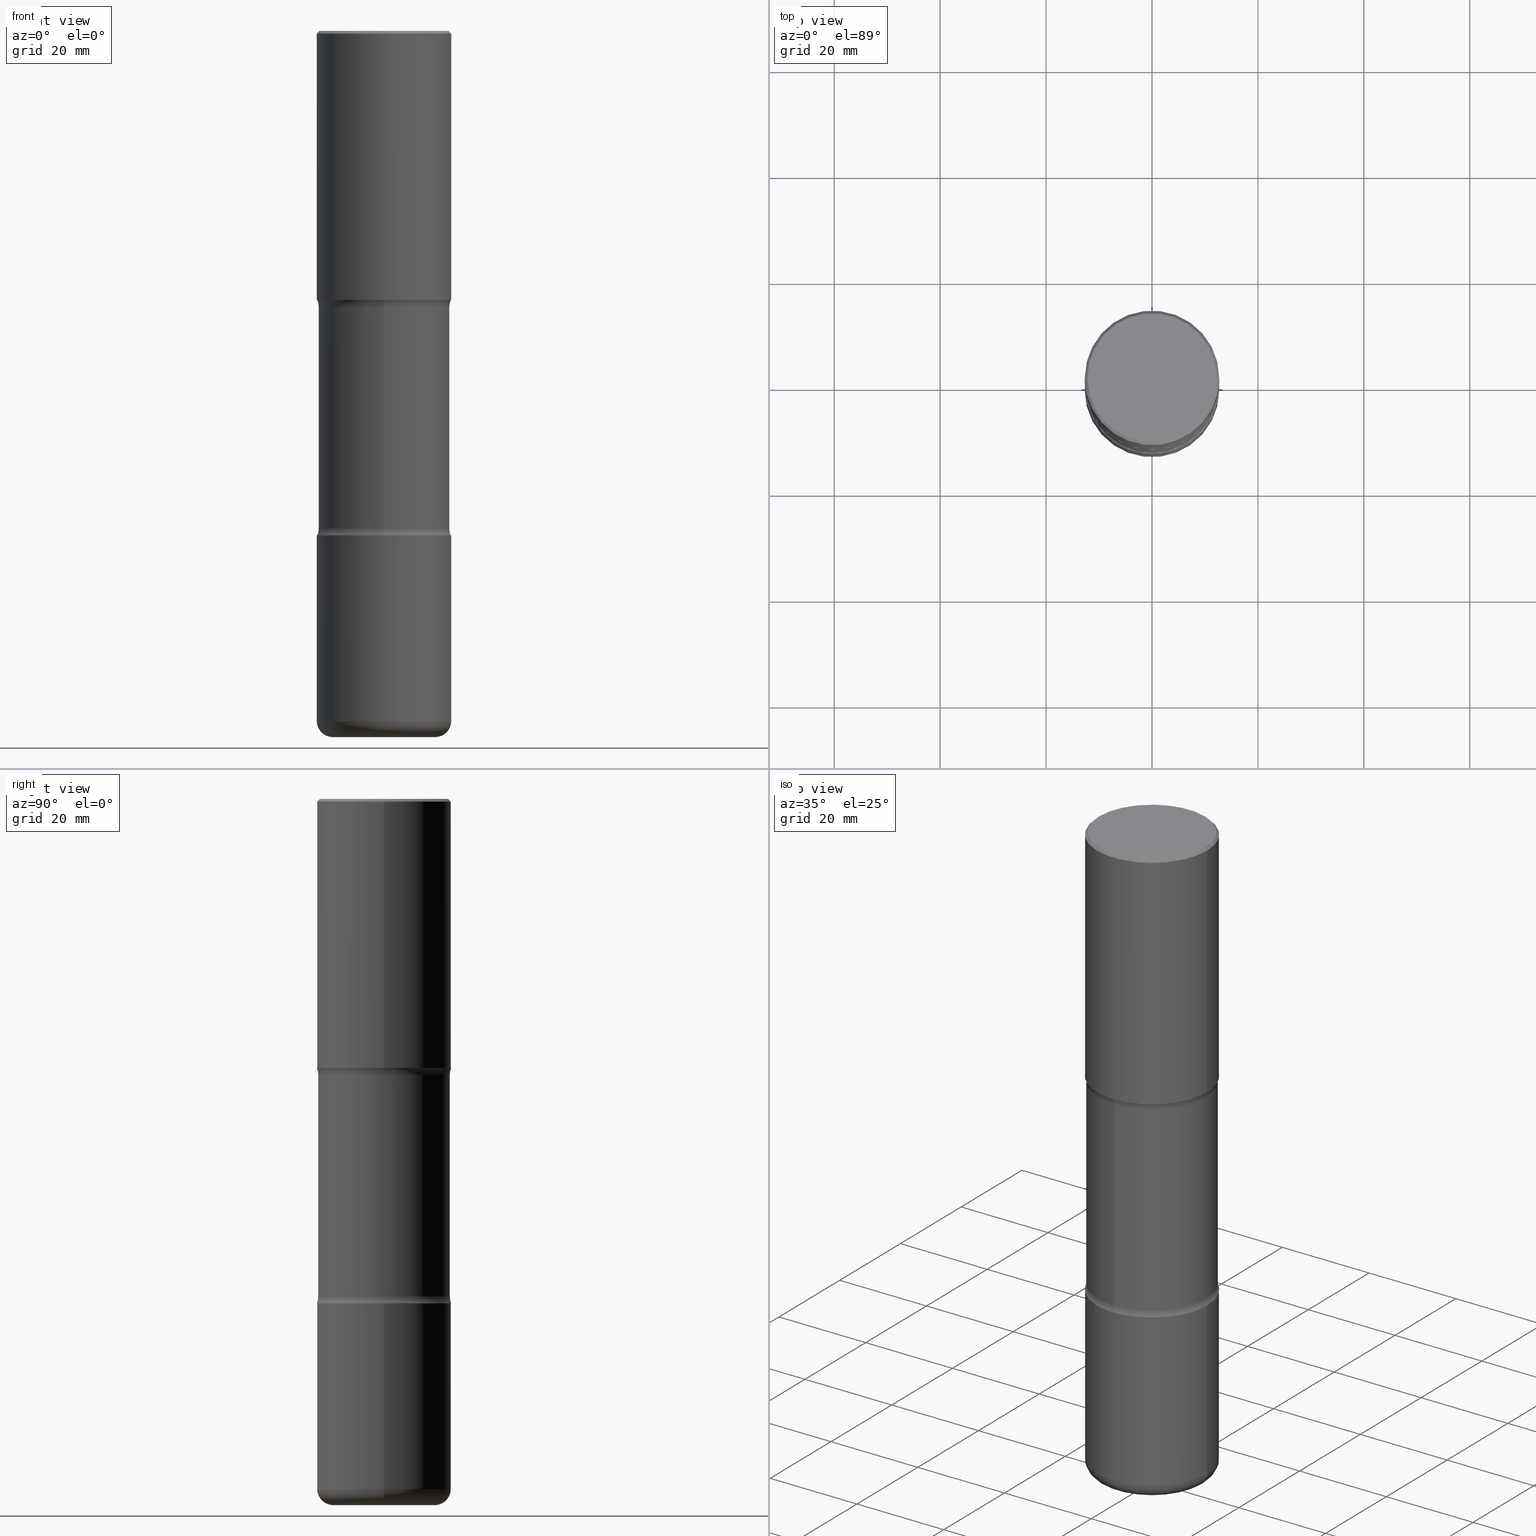
[diagram: canonical four-view strip — front | top / right | iso, engineering-drawing reading convention]
A machine part, canonical four-view strip (front | top / right | iso — engineering-drawing reading convention). The complete STEP part file that produces these views, byte-faithful:
ISO-10303-21;
HEADER;
FILE_DESCRIPTION (( 'STEP AP203' ),
    '1' );
FILE_NAME ('34015.STEP',
    '2024-03-01T22:55:45',
    ( '' ),
    ( '' ),
    'SwSTEP 2.0',
    'SolidWorks 2023',
    '' );
FILE_SCHEMA (( 'CONFIG_CONTROL_DESIGN' ));
ENDSEC;

DATA;
#1 = DIRECTION ( 'NONE',  ( -2.445468806185136597E-29, 3.491481338843145583E-15, 1.000000000000000000 ) ) ;
#2 = VECTOR ( 'NONE', #487, 39.37007874015748143 ) ;
#3 = DIRECTION ( 'NONE',  ( -2.445468806185136597E-29, 3.491481338843145583E-15, 1.000000000000000000 ) ) ;
#4 = DIRECTION ( 'NONE',  ( 2.477262793819919418E-29, -3.445950538948741294E-15, -1.000000000000000000 ) ) ;
#5 = ADVANCED_FACE ( 'NONE', ( #235 ), #245, .T. ) ;
#6 = LINE ( 'NONE', #478, #280 ) ;
#7 = DIRECTION ( 'NONE',  ( 2.477262793819919418E-29, -3.445950538948741294E-15, -1.000000000000000000 ) ) ;
#8 = DIRECTION ( 'NONE',  ( 2.445468806185136597E-29, -3.491481338843145583E-15, -1.000000000000000000 ) ) ;
#9 = CIRCLE ( 'NONE', #236, 0.1249999999999999584 ) ;
#10 = CONICAL_SURFACE ( 'NONE', #22, 0.5000000000000002220, 0.7853981633974485010 ) ;
#11 = ORIENTED_EDGE ( 'NONE', *, *, #416, .T. ) ;
#12 = EDGE_CURVE ( 'NONE', #409, #187, #298, .T. ) ;
#13 = TOROIDAL_SURFACE ( 'NONE', #247, 0.3800000000000005040, 0.1200000000000004258 ) ;
#14 = CYLINDRICAL_SURFACE ( 'NONE', #419, 0.4890000000000000457 ) ;
#15 = EDGE_CURVE ( 'NONE', #548, #131, #267, .T. ) ;
#16 = PLANE ( 'NONE',  #249 ) ;
#17 = PERSON_AND_ORGANIZATION ( #499, #469 ) ;
#18 = LINE ( 'NONE', #63, #503 ) ;
#19 = ORIENTED_EDGE ( 'NONE', *, *, #190, .T. ) ;
#20 = CARTESIAN_POINT ( 'NONE',  ( 0.5000000000000002220, -3.500078625662630657E-15, -0.02000000000000010103 ) ) ;
#21 = ORIENTED_EDGE ( 'NONE', *, *, #436, .F. ) ;
#22 = AXIS2_PLACEMENT_3D ( 'NONE', #92, #8, #481 ) ;
#23 = ORIENTED_EDGE ( 'NONE', *, *, #374, .F. ) ;
#24 = APPLICATION_CONTEXT ( 'configuration controlled 3d designs of mechanical parts and assemblies' ) ;
#25 = ORIENTED_EDGE ( 'NONE', *, *, #12, .T. ) ;
#26 = VERTEX_POINT ( 'NONE', #35 ) ;
#27 = EDGE_CURVE ( 'NONE', #26, #321, #9, .T. ) ;
#28 = EDGE_CURVE ( 'NONE', #457, #323, #118, .T. ) ;
#29 = CIRCLE ( 'NONE', #69, 0.3800000000000005040 ) ;
#30 = AXIS2_PLACEMENT_3D ( 'NONE', #74, #116, #244 ) ;
#31 = LINE ( 'NONE', #335, #282 ) ;
#32 = DIRECTION ( 'NONE',  ( 1.000000000000000000, -6.860497997771530774E-15, 4.841356471107676355E-29 ) ) ;
#33 = COORDINATED_UNIVERSAL_TIME_OFFSET ( 5, 0, .BEHIND. ) ;
#34 = DIRECTION ( 'NONE',  ( 1.000000000000000000, -6.982962677686266711E-15, 4.876176775795935232E-29 ) ) ;
#35 = CARTESIAN_POINT ( 'NONE',  ( -3.430248998885676640E-15, -0.5000000000000134337, -3.749999999999997780 ) ) ;
#36 = FACE_OUTER_BOUND ( 'NONE', #106, .T. ) ;
#37 = CIRCLE ( 'NONE', #108, 0.1249999999999999584 ) ;
#38 = APPROVAL_PERSON_ORGANIZATION ( #65, #324, #274 ) ;
#39 = ORIENTED_EDGE ( 'NONE', *, *, #15, .F. ) ;
#40 = EDGE_CURVE ( 'NONE', #434, #276, #319, .T. ) ;
#41 = EDGE_CURVE ( 'NONE', #187, #313, #367, .T. ) ;
#42 = DIRECTION ( 'NONE',  ( -2.445468806185136597E-29, 3.491481338843145583E-15, 1.000000000000000000 ) ) ;
#43 = CARTESIAN_POINT ( 'NONE',  ( -4.212345770631630550E-15, -0.6140000000000130909, -3.698726225026820025 ) ) ;
#44 = PERSON_AND_ORGANIZATION ( #499, #469 ) ;
#45 = ORIENTED_EDGE ( 'NONE', *, *, #240, .T. ) ;
#46 = CARTESIAN_POINT ( 'NONE',  ( 1.288640221392413968E-28, -1.826198082908490324E-14, -5.249999999999999112 ) ) ;
#47 = APPROVAL ( #382, 'UNSPECIFIED' ) ;
#48 = ADVANCED_FACE ( 'NONE', ( #117 ), #201, .F. ) ;
#49 = AXIS2_PLACEMENT_3D ( 'NONE', #241, #198, #555 ) ;
#50 = CIRCLE ( 'NONE', #171, 0.4890000000000001013 ) ;
#51 = DIRECTION ( 'NONE',  ( 2.477262793819919418E-29, -3.445950538948741294E-15, -1.000000000000000000 ) ) ;
#52 = APPROVAL_ROLE ( '' ) ;
#53 = DIRECTION ( 'NONE',  ( -1.000000000000000000, 6.982962677686265922E-15, -4.876176775795935793E-29 ) ) ;
#54 = ORIENTED_EDGE ( 'NONE', *, *, #345, .F. ) ;
#55 = LINE ( 'NONE', #130, #388 ) ;
#56 = CALENDAR_DATE ( 2024, 1, 3 ) ;
#57 = EDGE_CURVE ( 'NONE', #466, #304, #37, .T. ) ;
#58 = ORIENTED_EDGE ( 'NONE', *, *, #129, .F. ) ;
#59 = CYLINDRICAL_SURFACE ( 'NONE', #492, 0.4890000000000000457 ) ;
#60 = EDGE_LOOP ( 'NONE', ( #539, #331 ) ) ;
#61 = ADVANCED_FACE ( 'NONE', ( #223 ), #484, .T. ) ;
#62 = TOROIDAL_SURFACE ( 'NONE', #404, 0.6140000000000001013, 0.1250000000000000278 ) ;
#63 = CARTESIAN_POINT ( 'NONE',  ( 3.414668749388713416E-15, 0.4889999999999817826, -5.250000000000000888 ) ) ;
#64 = ORIENTED_EDGE ( 'NONE', *, *, #225, .F. ) ;
#65 = PERSON_AND_ORGANIZATION ( #499, #469 ) ;
#66 = EDGE_LOOP ( 'NONE', ( #401, #543, #516, #79 ) ) ;
#67 = EDGE_LOOP ( 'NONE', ( #534, #153 ) ) ;
#68 = PRODUCT_DEFINITION_SHAPE ( 'NONE', 'NONE',  #446 ) ;
#69 = AXIS2_PLACEMENT_3D ( 'NONE', #219, #3, #435 ) ;
#70 = LOCAL_TIME ( 17, 55, 45.00000000000000000, #202 ) ;
#71 = EDGE_CURVE ( 'NONE', #438, #182, #154, .T. ) ;
#72 = EDGE_LOOP ( 'NONE', ( #251, #227, #151, #21 ) ) ;
#73 = EDGE_LOOP ( 'NONE', ( #194, #11, #19, #54 ) ) ;
#74 = CARTESIAN_POINT ( 'NONE',  ( 4.890937612370298557E-31, -6.982962677686327354E-17, -0.02000000000000010103 ) ) ;
#75 = DIRECTION ( 'NONE',  ( -6.982962677686265133E-15, -1.000000000000000000, 0.000000000000000000 ) ) ;
#76 = CALENDAR_DATE ( 2024, 1, 3 ) ;
#77 = DIRECTION ( 'NONE',  ( 6.860497997771532351E-15, 1.000000000000000000, 0.000000000000000000 ) ) ;
#78 = TOROIDAL_SURFACE ( 'NONE', #394, 0.6140000000000001013, 0.1249999999999999584 ) ;
#79 = ORIENTED_EDGE ( 'NONE', *, *, #396, .F. ) ;
#80 = SECURITY_CLASSIFICATION_LEVEL ( 'unclassified' ) ;
#81 = DIRECTION ( 'NONE',  ( 2.477262793819919418E-29, -3.445950538948741294E-15, -1.000000000000000000 ) ) ;
#82 = LINE ( 'NONE', #243, #414 ) ;
#83 = EDGE_CURVE ( 'NONE', #304, #321, #378, .T. ) ;
#84 = PERSON_AND_ORGANIZATION_ROLE ( 'classification_officer' ) ;
#85 = CIRCLE ( 'NONE', #290, 0.5000000000000004441 ) ;
#86 = AXIS2_PLACEMENT_3D ( 'NONE', #143, #488, #377 ) ;
#87 = AXIS2_PLACEMENT_3D ( 'NONE', #412, #495, #366 ) ;
#88 = LINE ( 'NONE', #253, #420 ) ;
#89 = EDGE_LOOP ( 'NONE', ( #144, #94, #391, #64 ) ) ;
#90 = DIRECTION ( 'NONE',  ( 2.477262793819919418E-29, -3.445950538948741294E-15, -1.000000000000000000 ) ) ;
#91 = DIRECTION ( 'NONE',  ( 1.000000000000000000, 0.000000000000000000, 0.000000000000000000 ) ) ;
#92 = CARTESIAN_POINT ( 'NONE',  ( 4.890937612370298557E-31, -6.982962677686327354E-17, -0.02000000000000010103 ) ) ;
#93 = AXIS2_PLACEMENT_3D ( 'NONE', #477, #266, #271 ) ;
#94 = ORIENTED_EDGE ( 'NONE', *, *, #129, .T. ) ;
#95 = CARTESIAN_POINT ( 'NONE',  ( 3.414668749388633741E-15, 0.4889999999999927738, -2.051273774973179975 ) ) ;
#96 = PERSON_AND_ORGANIZATION_ROLE ( 'creator' ) ;
#97 = DIRECTION ( 'NONE',  ( 2.477262793819919418E-29, -3.445950538948741294E-15, -1.000000000000000000 ) ) ;
#98 = DIRECTION ( 'NONE',  ( 6.982962677686265133E-15, 1.000000000000000000, -3.351960728422408359E-15 ) ) ;
#99 = AXIS2_PLACEMENT_3D ( 'NONE', #350, #51, #98 ) ;
#100 = LOCAL_TIME ( 17, 55, 45.00000000000000000, #444 ) ;
#101 = MANIFOLD_SOLID_BREP ( 'Body-Move/Copy2[1]', #512 ) ;
#102 = DIRECTION ( 'NONE',  ( 2.477262793819919418E-29, -3.445950538948741294E-15, -1.000000000000000000 ) ) ;
#103 = ORIENTED_EDGE ( 'NONE', *, *, #353, .T. ) ;
#104 = VERTEX_POINT ( 'NONE', #176 ) ;
#105 = DIRECTION ( 'NONE',  ( -6.982962677686265133E-15, -1.000000000000000000, 0.000000000000000000 ) ) ;
#106 = EDGE_LOOP ( 'NONE', ( #368, #415, #289, #417 ) ) ;
#107 = CARTESIAN_POINT ( 'NONE',  ( 3.491481338843227230E-15, 0.4999999999999872879, -3.750000000000001332 ) ) ;
#108 = AXIS2_PLACEMENT_3D ( 'NONE', #273, #541, #105 ) ;
#109 = AXIS2_PLACEMENT_3D ( 'NONE', #558, #161, #465 ) ;
#110 = ADVANCED_FACE ( 'NONE', ( #181 ), #10, .T. ) ;
#111 = ORIENTED_EDGE ( 'NONE', *, *, #139, .F. ) ;
#112 = ORIENTED_EDGE ( 'NONE', *, *, #556, .F. ) ;
#113 = FACE_OUTER_BOUND ( 'NONE', #60, .T. ) ;
#114 =( LENGTH_UNIT ( ) NAMED_UNIT ( * ) SI_UNIT ( $, .METRE. ) );
#115 = MANIFOLD_SOLID_BREP ( 'Body-Move/Copy2[4]', #518 ) ;
#116 = DIRECTION ( 'NONE',  ( -2.445468806185136597E-29, 3.491481338843145583E-15, 1.000000000000000000 ) ) ;
#117 = FACE_OUTER_BOUND ( 'NONE', #258, .T. ) ;
#118 = CIRCLE ( 'NONE', #437, 0.4800000000000001488 ) ;
#119 = FACE_OUTER_BOUND ( 'NONE', #365, .T. ) ;
#120 = CIRCLE ( 'NONE', #186, 0.1250000000000000278 ) ;
#121 = CIRCLE ( 'NONE', #30, 0.5000000000000002220 ) ;
#122 = CARTESIAN_POINT ( 'NONE',  ( 9.045119605921999164E-29, -1.291403359217090407E-14, -3.698726225026822245 ) ) ;
#123 = ADVANCED_FACE ( 'NONE', ( #408 ), #16, .F. ) ;
#124 = DIRECTION ( 'NONE',  ( 1.000000000000000000, -6.982962677686266711E-15, 4.876036955247127722E-29 ) ) ;
#125 = CARTESIAN_POINT ( 'NONE',  ( -4.212345770631670782E-15, -0.6140000000000073177, -2.051273774973176423 ) ) ;
#126 = TOROIDAL_SURFACE ( 'NONE', #178, 0.6140000000000001013, 0.1249999999999999584 ) ;
#127 = ADVANCED_FACE ( 'NONE', ( #264 ), #359, .T. ) ;
#128 = CC_DESIGN_APPROVAL ( #324, ( #527 ) ) ;
#129 = EDGE_CURVE ( 'NONE', #104, #276, #142, .T. ) ;
#130 = CARTESIAN_POINT ( 'NONE',  ( 0.5000000000000003331, -3.491481338843135722E-15, 2.438088387897969578E-29 ) ) ;
#131 = VERTEX_POINT ( 'NONE', #451 ) ;
#132 = CARTESIAN_POINT ( 'NONE',  ( -0.4800000000000001488, 3.386736898677840380E-15, 1.280553747027767124E-17 ) ) ;
#133 =( CONVERSION_BASED_UNIT ( 'INCH', #486 ) LENGTH_UNIT ( ) NAMED_UNIT ( #433 ) );
#134 = CARTESIAN_POINT ( 'NONE',  ( -3.392516259897932872E-15, -0.4890000000000129798, -3.698726225026820469 ) ) ;
#135 =( NAMED_UNIT ( * ) PLANE_ANGLE_UNIT ( ) SI_UNIT ( $, .RADIAN. ) );
#136 = DIRECTION ( 'NONE',  ( 2.438088387897960049E-29, -3.491481338843145188E-15, -1.000000000000000000 ) ) ;
#137 = AXIS2_PLACEMENT_3D ( 'NONE', #384, #346, #553 ) ;
#138 = CARTESIAN_POINT ( 'NONE',  ( 9.043489408154512884E-29, -1.291636812815903928E-14, -3.698726225026822245 ) ) ;
#139 = EDGE_CURVE ( 'NONE', #409, #304, #18, .T. ) ;
#140 = FACE_OUTER_BOUND ( 'NONE', #89, .T. ) ;
#141 = APPLICATION_PROTOCOL_DEFINITION ( 'international standard', 'config_control_design', 1994, #293 ) ;
#142 = LINE ( 'NONE', #317, #2 ) ;
#143 = CARTESIAN_POINT ( 'NONE',  ( 9.170508023194261117E-29, -1.309305502066179584E-14, -3.749999999999999556 ) ) ;
#144 = ORIENTED_EDGE ( 'NONE', *, *, #209, .T. ) ;
#145 = DIRECTION ( 'NONE',  ( -1.000000000000000000, 6.982962677686267499E-15, 0.000000000000000000 ) ) ;
#146 = APPROVAL ( #255, 'UNSPECIFIED' ) ;
#147 = VERTEX_POINT ( 'NONE', #480 ) ;
#148 = AXIS2_PLACEMENT_3D ( 'NONE', #407, #523, #91 ) ;
#149 = EDGE_LOOP ( 'NONE', ( #514, #405, #462, #379 ) ) ;
#150 = PRODUCT ( '34015', '34015', '', ( #262 ) ) ;
#151 = ORIENTED_EDGE ( 'NONE', *, *, #71, .T. ) ;
#152 = FACE_OUTER_BOUND ( 'NONE', #380, .T. ) ;
#153 = ORIENTED_EDGE ( 'NONE', *, *, #482, .T. ) ;
#154 = CIRCLE ( 'NONE', #93, 0.5000000000000002220 ) ;
#155 = ORIENTED_EDGE ( 'NONE', *, *, #305, .F. ) ;
#156 = PERSON_AND_ORGANIZATION_ROLE ( 'creator' ) ;
#157 = AXIS2_PLACEMENT_3D ( 'NONE', #226, #406, #188 ) ;
#158 = ORIENTED_EDGE ( 'NONE', *, *, #345, .T. ) ;
#159 = DIRECTION ( 'NONE',  ( -6.982962677686266711E-15, -1.000000000000000000, 3.491481338843145583E-15 ) ) ;
#160 = DIRECTION ( 'NONE',  ( 6.982962677686266711E-15, 1.000000000000000000, -3.278217592397113101E-15 ) ) ;
#161 = DIRECTION ( 'NONE',  ( -2.445468806185136597E-29, 3.491481338843145583E-15, 1.000000000000000000 ) ) ;
#162 = CARTESIAN_POINT ( 'NONE',  ( -3.131554243005659264E-46, 4.471029511141341874E-32, 1.280553747030123384E-17 ) ) ;
#163 = CIRCLE ( 'NONE', #215, 0.4800000000000001488 ) ;
#164 = APPROVAL_PERSON_ORGANIZATION ( #238, #47, #340 ) ;
#165 = DIRECTION ( 'NONE',  ( 2.477262793819919418E-29, -3.445950538948741294E-15, -1.000000000000000000 ) ) ;
#166 = CC_DESIGN_PERSON_AND_ORGANIZATION_ASSIGNMENT ( #191, #156, ( #527 ) ) ;
#167 = CARTESIAN_POINT ( 'NONE',  ( 0.000000000000000000, 0.000000000000000000, 0.000000000000000000 ) ) ;
#168 = DESIGN_CONTEXT ( 'detailed design', #293, 'design' ) ;
#169 = CARTESIAN_POINT ( 'NONE',  ( 3.414668749388675156E-15, 0.4889999999999871672, -3.698726225026823577 ) ) ;
#170 = CLOSED_SHELL ( 'NONE', ( #5, #110, #510, #123, #296, #200 ) ) ;
#171 = AXIS2_PLACEMENT_3D ( 'NONE', #138, #483, #440 ) ;
#172 = LOCAL_TIME ( 17, 55, 45.00000000000000000, #544 ) ;
#173 = DIRECTION ( 'NONE',  ( 1.000000000000000000, -6.982962677686265133E-15, 4.883557194083112340E-29 ) ) ;
#174 = DIRECTION ( 'NONE',  ( -2.445468806185136877E-29, 3.491481338843145188E-15, 1.000000000000000000 ) ) ;
#175 = CARTESIAN_POINT ( 'NONE',  ( 1.288640221392413968E-28, -1.826198082908490324E-14, -5.249999999999999112 ) ) ;
#176 = CARTESIAN_POINT ( 'NONE',  ( -0.5000000000000006661, -1.435858558946483566E-14, -5.130000000000001670 ) ) ;
#177 = AXIS2_PLACEMENT_3D ( 'NONE', #470, #339, #431 ) ;
#178 = AXIS2_PLACEMENT_3D ( 'NONE', #122, #511, #287 ) ;
#179 = DIRECTION ( 'NONE',  ( 6.982962677686265133E-15, 1.000000000000000000, -3.278217592397113101E-15 ) ) ;
#180 = PERSON_AND_ORGANIZATION_ROLE ( 'design_owner' ) ;
#181 = FACE_OUTER_BOUND ( 'NONE', #72, .T. ) ;
#182 = VERTEX_POINT ( 'NONE', #463 ) ;
#183 = PERSON_AND_ORGANIZATION ( #499, #469 ) ;
#184 = ADVANCED_FACE ( 'NONE', ( #36 ), #78, .F. ) ;
#185 = EDGE_LOOP ( 'NONE', ( #155, #192 ) ) ;
#186 = AXIS2_PLACEMENT_3D ( 'NONE', #125, #467, #77 ) ;
#187 = VERTEX_POINT ( 'NONE', #203 ) ;
#188 = DIRECTION ( 'NONE',  ( 1.000000000000000000, -6.982962677686268288E-15, 0.000000000000000000 ) ) ;
#189 = EDGE_LOOP ( 'NONE', ( #228, #370 ) ) ;
#190 = EDGE_CURVE ( 'NONE', #560, #537, #256, .T. ) ;
#191 = PERSON_AND_ORGANIZATION ( #499, #469 ) ;
#192 = ORIENTED_EDGE ( 'NONE', *, *, #416, .F. ) ;
#193 = CC_DESIGN_PERSON_AND_ORGANIZATION_ASSIGNMENT ( #476, #180, ( #150 ) ) ;
#194 = ORIENTED_EDGE ( 'NONE', *, *, #454, .F. ) ;
#195 = AXIS2_PLACEMENT_3D ( 'NONE', #208, #165, #160 ) ;
#196 = CALENDAR_DATE ( 2024, 1, 3 ) ;
#197 = AXIS2_PLACEMENT_3D ( 'NONE', #259, #528, #315 ) ;
#198 = DIRECTION ( 'NONE',  ( -2.445468806185136597E-29, 3.491481338843145583E-15, 1.000000000000000000 ) ) ;
#199 = DIRECTION ( 'NONE',  ( -2.445468806185136877E-29, 3.491481338843145188E-15, 1.000000000000000000 ) ) ;
#200 = ADVANCED_FACE ( 'NONE', ( #557 ), #291, .T. ) ;
#201 = PLANE ( 'NONE',  #137 ) ;
#202 = COORDINATED_UNIVERSAL_TIME_OFFSET ( 5, 0, .BEHIND. ) ;
#203 = CARTESIAN_POINT ( 'NONE',  ( 3.491481338843185026E-15, 0.4999999999999934497, -2.000000000000002220 ) ) ;
#204 = DIRECTION ( 'NONE',  ( -2.445468806185136597E-29, 3.491481338843145583E-15, 1.000000000000000000 ) ) ;
#205 = ORIENTED_EDGE ( 'NONE', *, *, #240, .F. ) ;
#206 = AXIS2_PLACEMENT_3D ( 'NONE', #517, #386, #337 ) ;
#207 = LOCAL_TIME ( 17, 55, 45.00000000000000000, #362 ) ;
#208 = CARTESIAN_POINT ( 'NONE',  ( 4.835298134009405219E-29, -7.062641577501501234E-15, -2.000000000000000444 ) ) ;
#209 = EDGE_CURVE ( 'NONE', #537, #104, #429, .T. ) ;
#210 = ADVANCED_FACE ( 'NONE', ( #344 ), #126, .F. ) ;
#211 = LINE ( 'NONE', #515, #545 ) ;
#212 = DIRECTION ( 'NONE',  ( -2.445468806185136877E-29, 3.491481338843145188E-15, 1.000000000000000000 ) ) ;
#213 = ADVANCED_FACE ( 'NONE', ( #119 ), #535, .F. ) ;
#214 = DIRECTION ( 'NONE',  ( 6.982962677686265133E-15, 1.000000000000000000, -3.278217592397113101E-15 ) ) ;
#215 = AXIS2_PLACEMENT_3D ( 'NONE', #162, #297, #248 ) ;
#216 = CARTESIAN_POINT ( 'NONE',  ( 1.254525497572975307E-28, -1.791129926826534290E-14, -5.130000000000001670 ) ) ;
#217 = CC_DESIGN_PERSON_AND_ORGANIZATION_ASSIGNMENT ( #422, #242, ( #527 ) ) ;
#218 = EDGE_CURVE ( 'NONE', #147, #313, #120, .T. ) ;
#219 = CARTESIAN_POINT ( 'NONE',  ( 1.283871123247197162E-28, -1.833027702892652269E-14, -5.250000000000001776 ) ) ;
#220 = DATE_AND_TIME ( #56, #100 ) ;
#221 = ORIENTED_EDGE ( 'NONE', *, *, #139, .T. ) ;
#222 = DIRECTION ( 'NONE',  ( -2.445468806185136597E-29, 3.491481338843145583E-15, 1.000000000000000000 ) ) ;
#223 = FACE_OUTER_BOUND ( 'NONE', #185, .T. ) ;
#224 = CIRCLE ( 'NONE', #109, 0.5000000000000004441 ) ;
#225 = EDGE_CURVE ( 'NONE', #537, #434, #82, .T. ) ;
#226 = CARTESIAN_POINT ( 'NONE',  ( 9.170508023194261117E-29, -1.309305502066179584E-14, -3.749999999999999556 ) ) ;
#227 = ORIENTED_EDGE ( 'NONE', *, *, #498, .T. ) ;
#228 = ORIENTED_EDGE ( 'NONE', *, *, #232, .T. ) ;
#229 = CARTESIAN_POINT ( 'NONE',  ( 4.890937612370298557E-31, -6.982962677686327354E-17, -0.02000000000000010103 ) ) ;
#230 = CIRCLE ( 'NONE', #554, 0.5000000000000004441 ) ;
#231 = ORIENTED_EDGE ( 'NONE', *, *, #352, .F. ) ;
#232 = EDGE_CURVE ( 'NONE', #323, #457, #163, .T. ) ;
#233 = ORIENTED_EDGE ( 'NONE', *, *, #550, .T. ) ;
#234 = ORIENTED_EDGE ( 'NONE', *, *, #232, .F. ) ;
#235 = FACE_OUTER_BOUND ( 'NONE', #66, .T. ) ;
#236 = AXIS2_PLACEMENT_3D ( 'NONE', #43, #32, #421 ) ;
#237 = CIRCLE ( 'NONE', #320, 0.5000000000000004441 ) ;
#238 = PERSON_AND_ORGANIZATION ( #499, #469 ) ;
#239 = ADVANCED_FACE ( 'NONE', ( #343 ), #383, .T. ) ;
#240 = EDGE_CURVE ( 'NONE', #147, #321, #211, .T. ) ;
#241 = CARTESIAN_POINT ( 'NONE',  ( 9.170508023194261117E-29, -1.309305502066179584E-14, -3.749999999999999556 ) ) ;
#242 = PERSON_AND_ORGANIZATION_ROLE ( 'design_supplier' ) ;
#243 = CARTESIAN_POINT ( 'NONE',  ( 0.5000000000000004441, -3.491481338843136511E-15, 2.438088387897969858E-29 ) ) ;
#244 = DIRECTION ( 'NONE',  ( 1.000000000000000000, -6.982962677686267499E-15, 0.000000000000000000 ) ) ;
#245 = CYLINDRICAL_SURFACE ( 'NONE', #491, 0.5000000000000003331 ) ;
#246 = DIRECTION ( 'NONE',  ( 2.477262793819919418E-29, -3.445950538948741294E-15, -1.000000000000000000 ) ) ;
#247 = AXIS2_PLACEMENT_3D ( 'NONE', #216, #306, #173 ) ;
#248 = DIRECTION ( 'NONE',  ( 1.000000000000000000, -6.982962677686266711E-15, 4.876036955247127722E-29 ) ) ;
#249 = AXIS2_PLACEMENT_3D ( 'NONE', #442, #136, #310 ) ;
#250 = CC_DESIGN_APPROVAL ( #47, ( #301 ) ) ;
#251 = ORIENTED_EDGE ( 'NONE', *, *, #28, .F. ) ;
#252 = DIRECTION ( 'NONE',  ( 2.477262793819919418E-29, -3.445950538948741294E-15, -1.000000000000000000 ) ) ;
#253 = CARTESIAN_POINT ( 'NONE',  ( -0.5000000000000002220, 3.421651712066272029E-15, -0.02000000000000010103 ) ) ;
#254 = FACE_OUTER_BOUND ( 'NONE', #559, .T. ) ;
#255 = APPROVAL_STATUS ( 'not_yet_approved' ) ;
#256 = CIRCLE ( 'NONE', #468, 0.1200000000000004258 ) ;
#257 = AXIS2_PLACEMENT_3D ( 'NONE', #229, #302, #145 ) ;
#258 = EDGE_LOOP ( 'NONE', ( #411, #231 ) ) ;
#259 = CARTESIAN_POINT ( 'NONE',  ( 0.000000000000000000, 0.000000000000000000, 0.000000000000000000 ) ) ;
#260 = ORIENTED_EDGE ( 'NONE', *, *, #426, .F. ) ;
#261 = FACE_OUTER_BOUND ( 'NONE', #73, .T. ) ;
#262 = MECHANICAL_CONTEXT ( 'NONE', #24, 'mechanical' ) ;
#263 = ADVANCED_BREP_SHAPE_REPRESENTATION ( '34015', ( #101, #285, #115, #148 ), #330 ) ;
#264 = FACE_OUTER_BOUND ( 'NONE', #149, .T. ) ;
#265 = DIRECTION ( 'NONE',  ( 1.000000000000000000, -6.982962677686264344E-15, 0.000000000000000000 ) ) ;
#266 = DIRECTION ( 'NONE',  ( -2.445468806185136597E-29, 3.491481338843145583E-15, 1.000000000000000000 ) ) ;
#267 = CIRCLE ( 'NONE', #177, 0.5000000000000004441 ) ;
#268 = AXIS2_PLACEMENT_3D ( 'NONE', #395, #354, #521 ) ;
#269 = CIRCLE ( 'NONE', #157, 0.5000000000000004441 ) ;
#270 = ORIENTED_EDGE ( 'NONE', *, *, #490, .T. ) ;
#271 = DIRECTION ( 'NONE',  ( 1.000000000000000000, -6.982962677686267499E-15, 0.000000000000000000 ) ) ;
#272 = ORIENTED_EDGE ( 'NONE', *, *, #225, .T. ) ;
#273 = CARTESIAN_POINT ( 'NONE',  ( 4.287539084099458101E-15, 0.6139999999999872227, -3.698726225026824466 ) ) ;
#274 = APPROVAL_ROLE ( '' ) ;
#275 = DIRECTION ( 'NONE',  ( -6.982962677686265922E-15, -1.000000000000000000, 3.445950538948741294E-15 ) ) ;
#276 = VERTEX_POINT ( 'NONE', #428 ) ;
#277 = CC_DESIGN_DATE_AND_TIME_ASSIGNMENT ( #294, #472, ( #301 ) ) ;
#278 = DIRECTION ( 'NONE',  ( 6.982962677686265922E-15, 1.000000000000000000, -3.445950538948741294E-15 ) ) ;
#279 = FACE_OUTER_BOUND ( 'NONE', #67, .T. ) ;
#280 = VECTOR ( 'NONE', #212, 39.37007874015748143 ) ;
#281 = ORIENTED_EDGE ( 'NONE', *, *, #57, .F. ) ;
#282 = VECTOR ( 'NONE', #505, 39.37007874015748143 ) ;
#283 = DIRECTION ( 'NONE',  ( 6.982962677686265133E-15, 1.000000000000000000, -3.351960728422408359E-15 ) ) ;
#284 = EDGE_LOOP ( 'NONE', ( #496, #348, #549, #397 ) ) ;
#285 = MANIFOLD_SOLID_BREP ( 'Body-Move/Copy2[2]', #170 ) ;
#286 = CARTESIAN_POINT ( 'NONE',  ( 4.287539084099417080E-15, 0.6139999999999927738, -2.051273774973180863 ) ) ;
#287 = DIRECTION ( 'NONE',  ( 6.982962677686265922E-15, 1.000000000000000000, -3.445950538948741294E-15 ) ) ;
#288 = CARTESIAN_POINT ( 'NONE',  ( 0.5000000000000006661, -2.140278060710847941E-14, -5.130000000000001670 ) ) ;
#289 = ORIENTED_EDGE ( 'NONE', *, *, #57, .T. ) ;
#290 = AXIS2_PLACEMENT_3D ( 'NONE', #308, #1, #265 ) ;
#291 = CYLINDRICAL_SURFACE ( 'NONE', #299, 0.5000000000000003331 ) ;
#292 = VERTEX_POINT ( 'NONE', #443 ) ;
#293 = APPLICATION_CONTEXT ( 'configuration controlled 3d designs of mechanical parts and assemblies' ) ;
#294 = DATE_AND_TIME ( #76, #360 ) ;
#295 = DIRECTION ( 'NONE',  ( 6.982962677686265922E-15, 1.000000000000000000, -3.445950538948741294E-15 ) ) ;
#296 = ADVANCED_FACE ( 'NONE', ( #522 ), #399, .F. ) ;
#297 = DIRECTION ( 'NONE',  ( -2.445468806185136597E-29, 3.491481338843145583E-15, 1.000000000000000000 ) ) ;
#298 = CIRCLE ( 'NONE', #525, 0.1250000000000000278 ) ;
#299 = AXIS2_PLACEMENT_3D ( 'NONE', #430, #347, #423 ) ;
#300 = CARTESIAN_POINT ( 'NONE',  ( 9.045119605921999164E-29, -1.291403359217090407E-14, -3.698726225026822245 ) ) ;
#301 = SECURITY_CLASSIFICATION ( '', '', #80 ) ;
#302 = DIRECTION ( 'NONE',  ( 2.445468806185136597E-29, -3.491481338843145583E-15, -1.000000000000000000 ) ) ;
#303 = DIRECTION ( 'NONE',  ( 2.477262793819919418E-29, -3.445950538948741294E-15, -1.000000000000000000 ) ) ;
#304 = VERTEX_POINT ( 'NONE', #169 ) ;
#305 = EDGE_CURVE ( 'NONE', #560, #292, #29, .T. ) ;
#306 = DIRECTION ( 'NONE',  ( -2.445468806185136597E-29, 3.491481338843145583E-15, 1.000000000000000000 ) ) ;
#307 = APPLICATION_PROTOCOL_DEFINITION ( 'international standard', 'config_control_design', 1994, #24 ) ;
#308 = CARTESIAN_POINT ( 'NONE',  ( 1.254525497572975307E-28, -1.791129926826534290E-14, -5.130000000000001670 ) ) ;
#309 =( NAMED_UNIT ( * ) SI_UNIT ( $, .STERADIAN. ) SOLID_ANGLE_UNIT ( ) );
#310 = DIRECTION ( 'NONE',  ( -1.000000000000000000, 6.982962677686265922E-15, -4.876176775795935793E-29 ) ) ;
#311 = AXIS2_PLACEMENT_3D ( 'NONE', #449, #90, #214 ) ;
#312 = CC_DESIGN_APPROVAL ( #146, ( #446 ) ) ;
#313 = VERTEX_POINT ( 'NONE', #392 ) ;
#314 = FACE_OUTER_BOUND ( 'NONE', #453, .T. ) ;
#315 = DIRECTION ( 'NONE',  ( 1.000000000000000000, -6.982962677686266711E-15, 4.876176775795935232E-29 ) ) ;
#316 = DATE_AND_TIME ( #398, #207 ) ;
#317 = CARTESIAN_POINT ( 'NONE',  ( -0.5000000000000004441, 3.552713678800504085E-15, -2.459467545127455133E-29 ) ) ;
#318 = ORIENTED_EDGE ( 'NONE', *, *, #393, .T. ) ;
#319 = CIRCLE ( 'NONE', #49, 0.5000000000000004441 ) ;
#320 = AXIS2_PLACEMENT_3D ( 'NONE', #402, #303, #179 ) ;
#321 = VERTEX_POINT ( 'NONE', #134 ) ;
#322 = APPROVAL_STATUS ( 'not_yet_approved' ) ;
#323 = VERTEX_POINT ( 'NONE', #132 ) ;
#324 = APPROVAL ( #322, 'UNSPECIFIED' ) ;
#325 = ADVANCED_FACE ( 'NONE', ( #261 ), #13, .T. ) ;
#326 = APPROVAL_DATE_TIME ( #413, #324 ) ;
#327 = ORIENTED_EDGE ( 'NONE', *, *, #436, .T. ) ;
#328 = SHAPE_DEFINITION_REPRESENTATION ( #68, #263 ) ;
#329 = AXIS2_PLACEMENT_3D ( 'NONE', #363, #403, #529 ) ;
#330 =( GEOMETRIC_REPRESENTATION_CONTEXT ( 3 ) GLOBAL_UNCERTAINTY_ASSIGNED_CONTEXT ( ( #497 ) ) GLOBAL_UNIT_ASSIGNED_CONTEXT ( ( #133, #135, #309 ) ) REPRESENTATION_CONTEXT ( 'NONE', 'WORKASPACE' ) );
#331 = ORIENTED_EDGE ( 'NONE', *, *, #426, .T. ) ;
#332 = DATE_AND_TIME ( #385, #70 ) ;
#333 = CIRCLE ( 'NONE', #87, 0.1200000000000004258 ) ;
#334 = EDGE_LOOP ( 'NONE', ( #260, #493, #318, #281 ) ) ;
#335 = CARTESIAN_POINT ( 'NONE',  ( 0.5000000000000002220, -3.500078625662630657E-15, -0.02000000000000010103 ) ) ;
#336 = ORIENTED_EDGE ( 'NONE', *, *, #550, .F. ) ;
#337 = DIRECTION ( 'NONE',  ( 1.000000000000000000, -6.982962677686264344E-15, 0.000000000000000000 ) ) ;
#338 = PLANE ( 'NONE',  #441 ) ;
#339 = DIRECTION ( 'NONE',  ( -2.445468806185136597E-29, 3.491481338843145583E-15, 1.000000000000000000 ) ) ;
#340 = APPROVAL_ROLE ( '' ) ;
#341 = DIRECTION ( 'NONE',  ( 1.000000000000000000, -6.982962677686275388E-15, 0.000000000000000000 ) ) ;
#342 = AXIS2_PLACEMENT_3D ( 'NONE', #364, #445, #53 ) ;
#343 = FACE_OUTER_BOUND ( 'NONE', #508, .T. ) ;
#344 = FACE_OUTER_BOUND ( 'NONE', #334, .T. ) ;
#345 = EDGE_CURVE ( 'NONE', #104, #537, #85, .T. ) ;
#346 = DIRECTION ( 'NONE',  ( 2.477262793819918857E-29, -3.445950538948741294E-15, -1.000000000000000000 ) ) ;
#347 = DIRECTION ( 'NONE',  ( -2.445468806185136597E-29, 3.491481338843145583E-15, 1.000000000000000000 ) ) ;
#348 = ORIENTED_EDGE ( 'NONE', *, *, #218, .T. ) ;
#349 = AXIS2_PLACEMENT_3D ( 'NONE', #455, #4, #355 ) ;
#350 = CARTESIAN_POINT ( 'NONE',  ( 4.962316749049152891E-29, -7.239328470004260161E-15, -2.051273774973178643 ) ) ;
#351 = AXIS2_PLACEMENT_3D ( 'NONE', #369, #538, #283 ) ;
#352 = EDGE_CURVE ( 'NONE', #313, #187, #230, .T. ) ;
#353 = EDGE_CURVE ( 'NONE', #147, #409, #519, .T. ) ;
#354 = DIRECTION ( 'NONE',  ( -2.438088387897960049E-29, 3.491481338843145188E-15, 1.000000000000000000 ) ) ;
#355 = DIRECTION ( 'NONE',  ( 6.982962677686265922E-15, 1.000000000000000000, -3.351960728422408359E-15 ) ) ;
#356 = DIRECTION ( 'NONE',  ( 1.000000000000000000, -6.982962677686262766E-15, 0.000000000000000000 ) ) ;
#357 = EDGE_LOOP ( 'NONE', ( #23, #233, #373, #112 ) ) ;
#358 = CARTESIAN_POINT ( 'NONE',  ( 1.283871123247197162E-28, -1.833027702892652269E-14, -5.250000000000001776 ) ) ;
#359 = TOROIDAL_SURFACE ( 'NONE', #329, 0.3800000000000005040, 0.1200000000000004258 ) ;
#360 = LOCAL_TIME ( 17, 55, 45.00000000000000000, #33 ) ;
#361 = CARTESIAN_POINT ( 'NONE',  ( 4.835298134009405219E-29, -7.062641577501501234E-15, -2.000000000000000444 ) ) ;
#362 = COORDINATED_UNIVERSAL_TIME_OFFSET ( 5, 0, .BEHIND. ) ;
#363 = CARTESIAN_POINT ( 'NONE',  ( 1.254525497572975307E-28, -1.791129926826534290E-14, -5.130000000000001670 ) ) ;
#364 = CARTESIAN_POINT ( 'NONE',  ( -1.878793962528557179E-28, -6.362144113441292148E-14, -5.250000000000000888 ) ) ;
#365 = EDGE_LOOP ( 'NONE', ( #533, #500, #25, #458 ) ) ;
#366 = DIRECTION ( 'NONE',  ( -1.000000000000000000, 7.105427357600997914E-15, 0.000000000000000000 ) ) ;
#367 = CIRCLE ( 'NONE', #195, 0.5000000000000004441 ) ;
#368 = ORIENTED_EDGE ( 'NONE', *, *, #27, .F. ) ;
#369 = CARTESIAN_POINT ( 'NONE',  ( 4.962316749049152891E-29, -7.239328470004260161E-15, -2.051273774973178643 ) ) ;
#370 = ORIENTED_EDGE ( 'NONE', *, *, #28, .T. ) ;
#371 = APPROVAL_DATE_TIME ( #332, #47 ) ;
#372 = CARTESIAN_POINT ( 'NONE',  ( 0.4800000000000001488, -3.396558832296483282E-15, 1.280553747032483033E-17 ) ) ;
#373 = ORIENTED_EDGE ( 'NONE', *, *, #396, .T. ) ;
#374 = EDGE_CURVE ( 'NONE', #131, #182, #6, .T. ) ;
#375 = DATE_TIME_ROLE ( 'creation_date' ) ;
#376 = ADVANCED_FACE ( 'NONE', ( #254 ), #14, .T. ) ;
#377 = DIRECTION ( 'NONE',  ( -1.000000000000000000, 6.982962677686265922E-15, -4.876176775795935793E-29 ) ) ;
#378 = CIRCLE ( 'NONE', #349, 0.4890000000000001013 ) ;
#379 = ORIENTED_EDGE ( 'NONE', *, *, #190, .F. ) ;
#380 = EDGE_LOOP ( 'NONE', ( #506, #234, #327, #460 ) ) ;
#381 = DIRECTION ( 'NONE',  ( -1.000000000000000000, 6.982962677686265922E-15, -4.883557194083112901E-29 ) ) ;
#382 = APPROVAL_STATUS ( 'not_yet_approved' ) ;
#383 = CYLINDRICAL_SURFACE ( 'NONE', #513, 0.5000000000000004441 ) ;
#384 = CARTESIAN_POINT ( 'NONE',  ( 4.890937612370274875E-29, -6.982962677686292743E-15, -2.000000000000000444 ) ) ;
#385 = CALENDAR_DATE ( 2024, 1, 3 ) ;
#386 = DIRECTION ( 'NONE',  ( -2.445468806185136597E-29, 3.491481338843145583E-15, 1.000000000000000000 ) ) ;
#387 = EDGE_CURVE ( 'NONE', #466, #26, #473, .T. ) ;
#388 = VECTOR ( 'NONE', #174, 39.37007874015748143 ) ;
#389 = CARTESIAN_POINT ( 'NONE',  ( 0.3800000000000005040, -2.056482508578612930E-14, -5.130000000000001670 ) ) ;
#390 = CARTESIAN_POINT ( 'NONE',  ( 0.5000000000000004441, -1.047444401652943004E-14, -2.000000000000000444 ) ) ;
#391 = ORIENTED_EDGE ( 'NONE', *, *, #40, .F. ) ;
#392 = CARTESIAN_POINT ( 'NONE',  ( -3.430248998885720422E-15, -0.5000000000000075495, -1.999999999999998890 ) ) ;
#393 = EDGE_CURVE ( 'NONE', #321, #304, #50, .T. ) ;
#394 = AXIS2_PLACEMENT_3D ( 'NONE', #300, #252, #552 ) ;
#395 = CARTESIAN_POINT ( 'NONE',  ( 4.890937612370274875E-29, -6.982962677686292743E-15, -2.000000000000000444 ) ) ;
#396 = EDGE_CURVE ( 'NONE', #548, #438, #55, .T. ) ;
#397 = ORIENTED_EDGE ( 'NONE', *, *, #12, .F. ) ;
#398 = CALENDAR_DATE ( 2024, 1, 3 ) ;
#399 = PLANE ( 'NONE',  #268 ) ;
#400 = CC_DESIGN_DATE_AND_TIME_ASSIGNMENT ( #220, #375, ( #446 ) ) ;
#401 = ORIENTED_EDGE ( 'NONE', *, *, #15, .T. ) ;
#402 = CARTESIAN_POINT ( 'NONE',  ( 9.170508023194261117E-29, -1.309305502066179584E-14, -3.749999999999999556 ) ) ;
#403 = DIRECTION ( 'NONE',  ( -2.445468806185136597E-29, 3.491481338843145583E-15, 1.000000000000000000 ) ) ;
#404 = AXIS2_PLACEMENT_3D ( 'NONE', #531, #102, #278 ) ;
#405 = ORIENTED_EDGE ( 'NONE', *, *, #454, .T. ) ;
#406 = DIRECTION ( 'NONE',  ( -2.445468806185136597E-29, 3.491481338843145583E-15, 1.000000000000000000 ) ) ;
#407 = CARTESIAN_POINT ( 'NONE',  ( 0.000000000000000000, 0.000000000000000000, 0.000000000000000000 ) ) ;
#408 = FACE_OUTER_BOUND ( 'NONE', #189, .T. ) ;
#409 = VERTEX_POINT ( 'NONE', #95 ) ;
#410 = ADVANCED_FACE ( 'NONE', ( #314 ), #59, .T. ) ;
#411 = ORIENTED_EDGE ( 'NONE', *, *, #41, .F. ) ;
#412 = CARTESIAN_POINT ( 'NONE',  ( -0.3800000000000005040, -1.521123687237695664E-14, -5.130000000000001670 ) ) ;
#413 = DATE_AND_TIME ( #196, #172 ) ;
#414 = VECTOR ( 'NONE', #199, 39.37007874015748143 ) ;
#415 = ORIENTED_EDGE ( 'NONE', *, *, #387, .F. ) ;
#416 = EDGE_CURVE ( 'NONE', #292, #560, #459, .T. ) ;
#417 = ORIENTED_EDGE ( 'NONE', *, *, #83, .T. ) ;
#418 = ORIENTED_EDGE ( 'NONE', *, *, #482, .F. ) ;
#419 = AXIS2_PLACEMENT_3D ( 'NONE', #46, #526, #485 ) ;
#420 = VECTOR ( 'NONE', #542, 39.37007874015748143 ) ;
#421 = DIRECTION ( 'NONE',  ( 6.860497997771532351E-15, 1.000000000000000000, 0.000000000000000000 ) ) ;
#422 = PERSON_AND_ORGANIZATION ( #499, #469 ) ;
#423 = DIRECTION ( 'NONE',  ( 1.000000000000000000, -6.982962677686266711E-15, 4.876176775795935793E-29 ) ) ;
#424 = CARTESIAN_POINT ( 'NONE',  ( -3.131554243005659264E-46, 4.471029511141341874E-32, 1.280553747030123384E-17 ) ) ;
#425 = CARTESIAN_POINT ( 'NONE',  ( 0.000000000000000000, 0.000000000000000000, 0.000000000000000000 ) ) ;
#426 = EDGE_CURVE ( 'NONE', #26, #466, #237, .T. ) ;
#427 = DIRECTION ( 'NONE',  ( 1.000000000000000000, -6.982962677686266711E-15, 4.876176775795935793E-29 ) ) ;
#428 = CARTESIAN_POINT ( 'NONE',  ( -0.5000000000000004441, -1.194946346566306450E-14, -3.749999999999999556 ) ) ;
#429 = CIRCLE ( 'NONE', #206, 0.5000000000000004441 ) ;
#430 = CARTESIAN_POINT ( 'NONE',  ( 0.000000000000000000, 0.000000000000000000, 0.000000000000000000 ) ) ;
#431 = DIRECTION ( 'NONE',  ( 1.000000000000000000, -6.982962677686266711E-15, 0.000000000000000000 ) ) ;
#432 = ADVANCED_FACE ( 'NONE', ( #140 ), #524, .T. ) ;
#433 = DIMENSIONAL_EXPONENTS ( 1.000000000000000000, 0.000000000000000000, 0.000000000000000000, 0.000000000000000000, 0.000000000000000000, 0.000000000000000000, 0.000000000000000000 ) ;
#434 = VERTEX_POINT ( 'NONE', #474 ) ;
#435 = DIRECTION ( 'NONE',  ( 1.000000000000000000, -6.982962677686262766E-15, 0.000000000000000000 ) ) ;
#436 = EDGE_CURVE ( 'NONE', #323, #182, #88, .T. ) ;
#437 = AXIS2_PLACEMENT_3D ( 'NONE', #424, #204, #124 ) ;
#438 = VERTEX_POINT ( 'NONE', #20 ) ;
#439 = AXIS2_PLACEMENT_3D ( 'NONE', #358, #222, #356 ) ;
#440 = DIRECTION ( 'NONE',  ( 6.982962677686265922E-15, 1.000000000000000000, -3.351960728422408359E-15 ) ) ;
#441 = AXIS2_PLACEMENT_3D ( 'NONE', #464, #507, #275 ) ;
#442 = CARTESIAN_POINT ( 'NONE',  ( 3.351822085289408731E-15, 0.4800000000000001488, -1.669508273909559839E-15 ) ) ;
#443 = CARTESIAN_POINT ( 'NONE',  ( -0.3800000000000005040, -1.499440011125148605E-14, -5.250000000000001776 ) ) ;
#444 = COORDINATED_UNIVERSAL_TIME_OFFSET ( 5, 0, .BEHIND. ) ;
#445 = DIRECTION ( 'NONE',  ( 2.438088387897960049E-29, -3.491481338843145188E-15, -1.000000000000000000 ) ) ;
#446 = PRODUCT_DEFINITION ( 'UNKNOWN', '', #527, #168 ) ;
#447 = ORIENTED_EDGE ( 'NONE', *, *, #393, .F. ) ;
#448 = DIRECTION ( 'NONE',  ( 6.982962677686265133E-15, 1.000000000000000000, -4.469280971229878074E-15 ) ) ;
#449 = CARTESIAN_POINT ( 'NONE',  ( 9.170508023194261117E-29, -1.309305502066179584E-14, -3.749999999999999556 ) ) ;
#450 = AXIS2_PLACEMENT_3D ( 'NONE', #471, #81, #295 ) ;
#451 = CARTESIAN_POINT ( 'NONE',  ( -0.5000000000000004441, 2.631752656892707803E-17, -2.000000000000000444 ) ) ;
#452 = CC_DESIGN_SECURITY_CLASSIFICATION ( #301, ( #527 ) ) ;
#453 = EDGE_LOOP ( 'NONE', ( #270, #45, #540, #111 ) ) ;
#454 = EDGE_CURVE ( 'NONE', #292, #104, #333, .T. ) ;
#455 = CARTESIAN_POINT ( 'NONE',  ( 9.043489408154512884E-29, -1.291636812815903928E-14, -3.698726225026822245 ) ) ;
#456 = DIRECTION ( 'NONE',  ( 2.477262793819919418E-29, -3.445950538948741294E-15, -1.000000000000000000 ) ) ;
#457 = VERTEX_POINT ( 'NONE', #372 ) ;
#458 = ORIENTED_EDGE ( 'NONE', *, *, #41, .T. ) ;
#459 = CIRCLE ( 'NONE', #439, 0.3800000000000005040 ) ;
#460 = ORIENTED_EDGE ( 'NONE', *, *, #556, .T. ) ;
#461 = FACE_OUTER_BOUND ( 'NONE', #284, .T. ) ;
#462 = ORIENTED_EDGE ( 'NONE', *, *, #209, .F. ) ;
#463 = CARTESIAN_POINT ( 'NONE',  ( -0.5000000000000002220, 3.421651712066272029E-15, -0.02000000000000010103 ) ) ;
#464 = CARTESIAN_POINT ( 'NONE',  ( 9.170508023194261117E-29, -1.309305502066179584E-14, -3.749999999999999556 ) ) ;
#465 = DIRECTION ( 'NONE',  ( 1.000000000000000000, -6.982962677686266711E-15, 0.000000000000000000 ) ) ;
#466 = VERTEX_POINT ( 'NONE', #107 ) ;
#467 = DIRECTION ( 'NONE',  ( 1.000000000000000000, -6.860497997771530774E-15, 4.841356471107676355E-29 ) ) ;
#468 = AXIS2_PLACEMENT_3D ( 'NONE', #389, #159, #341 ) ;
#469 = ORGANIZATION ( 'UNSPECIFIED', 'UNSPECIFIED', '' ) ;
#470 = CARTESIAN_POINT ( 'NONE',  ( 4.890937612370274875E-29, -6.982962677686292743E-15, -2.000000000000000444 ) ) ;
#471 = CARTESIAN_POINT ( 'NONE',  ( 4.968635048190363157E-29, -7.230280306018793706E-15, -2.051273774973178643 ) ) ;
#472 = DATE_TIME_ROLE ( 'classification_date' ) ;
#473 = CIRCLE ( 'NONE', #311, 0.5000000000000004441 ) ;
#474 = CARTESIAN_POINT ( 'NONE',  ( 0.5000000000000004441, -1.658453635950493392E-14, -3.749999999999999556 ) ) ;
#475 = DIRECTION ( 'NONE',  ( 6.982962677686266711E-15, 1.000000000000000000, -3.278217592397113101E-15 ) ) ;
#476 = PERSON_AND_ORGANIZATION ( #499, #469 ) ;
#477 = CARTESIAN_POINT ( 'NONE',  ( 4.890937612370298557E-31, -6.982962677686327354E-17, -0.02000000000000010103 ) ) ;
#478 = CARTESIAN_POINT ( 'NONE',  ( -0.5000000000000003331, 3.552713678800503296E-15, -2.459467545127454572E-29 ) ) ;
#479 = APPROVAL_DATE_TIME ( #316, #146 ) ;
#480 = CARTESIAN_POINT ( 'NONE',  ( -3.392516259897975076E-15, -0.4890000000000072622, -2.051273774973176867 ) ) ;
#481 = DIRECTION ( 'NONE',  ( -1.000000000000000000, 6.982962677686267499E-15, 0.000000000000000000 ) ) ;
#482 = EDGE_CURVE ( 'NONE', #276, #434, #269, .T. ) ;
#483 = DIRECTION ( 'NONE',  ( 2.477262793819919418E-29, -3.445950538948741294E-15, -1.000000000000000000 ) ) ;
#484 = PLANE ( 'NONE',  #342 ) ;
#485 = DIRECTION ( 'NONE',  ( 6.982962677686265133E-15, 1.000000000000000000, -4.469280971229878074E-15 ) ) ;
#486 = LENGTH_MEASURE_WITH_UNIT ( LENGTH_MEASURE( 0.02539999999999999897 ), #114 );
#487 = DIRECTION ( 'NONE',  ( -2.445468806185136877E-29, 3.491481338843145188E-15, 1.000000000000000000 ) ) ;
#488 = DIRECTION ( 'NONE',  ( 2.438088387897960049E-29, -3.491481338843145188E-15, -1.000000000000000000 ) ) ;
#489 = CC_DESIGN_PERSON_AND_ORGANIZATION_ASSIGNMENT ( #183, #96, ( #446 ) ) ;
#490 = EDGE_CURVE ( 'NONE', #409, #147, #520, .T. ) ;
#491 = AXIS2_PLACEMENT_3D ( 'NONE', #167, #551, #427 ) ;
#492 = AXIS2_PLACEMENT_3D ( 'NONE', #175, #97, #448 ) ;
#493 = ORIENTED_EDGE ( 'NONE', *, *, #27, .T. ) ;
#494 = ADVANCED_FACE ( 'NONE', ( #461 ), #62, .F. ) ;
#495 = DIRECTION ( 'NONE',  ( 7.105427357601001859E-15, 1.000000000000000000, -3.491481338843145583E-15 ) ) ;
#496 = ORIENTED_EDGE ( 'NONE', *, *, #353, .F. ) ;
#497 = UNCERTAINTY_MEASURE_WITH_UNIT (LENGTH_MEASURE( 1.000000000000000082E-05 ), #133, 'distance_accuracy_value', 'NONE');
#498 = EDGE_CURVE ( 'NONE', #457, #438, #31, .T. ) ;
#499 = PERSON ( 'UNSPECIFIED', 'UNSPECIFIED', 'UNSPECIFIED', ('UNSPECIFIED'), ('UNSPECIFIED'), ('UNSPECIFIED') ) ;
#500 = ORIENTED_EDGE ( 'NONE', *, *, #490, .F. ) ;
#501 = CC_DESIGN_PERSON_AND_ORGANIZATION_ASSIGNMENT ( #44, #84, ( #301 ) ) ;
#502 = ADVANCED_FACE ( 'NONE', ( #113 ), #338, .F. ) ;
#503 = VECTOR ( 'NONE', #456, 39.37007874015748143 ) ;
#504 = EDGE_LOOP ( 'NONE', ( #39, #336 ) ) ;
#505 = DIRECTION ( 'NONE',  ( 0.7071067811865476838, -7.319954787623257623E-15, -0.7071067811865473507 ) ) ;
#506 = ORIENTED_EDGE ( 'NONE', *, *, #498, .F. ) ;
#507 = DIRECTION ( 'NONE',  ( -2.477262793819918857E-29, 3.445950538948741294E-15, 1.000000000000000000 ) ) ;
#508 = EDGE_LOOP ( 'NONE', ( #58, #158, #272, #418 ) ) ;
#509 = PRODUCT_RELATED_PRODUCT_CATEGORY ( 'detail', '', ( #150 ) ) ;
#510 = ADVANCED_FACE ( 'NONE', ( #152 ), #536, .T. ) ;
#511 = DIRECTION ( 'NONE',  ( 2.477262793819919418E-29, -3.445950538948741294E-15, -1.000000000000000000 ) ) ;
#512 = CLOSED_SHELL ( 'NONE', ( #432, #127, #61, #325, #239, #530 ) ) ;
#513 = AXIS2_PLACEMENT_3D ( 'NONE', #425, #42, #34 ) ;
#514 = ORIENTED_EDGE ( 'NONE', *, *, #305, .T. ) ;
#515 = CARTESIAN_POINT ( 'NONE',  ( -3.354783520910149662E-15, -0.4890000000000182534, -5.249999999999996447 ) ) ;
#516 = ORIENTED_EDGE ( 'NONE', *, *, #71, .F. ) ;
#517 = CARTESIAN_POINT ( 'NONE',  ( 1.254525497572975307E-28, -1.791129926826534290E-14, -5.130000000000001670 ) ) ;
#518 = CLOSED_SHELL ( 'NONE', ( #410, #210, #494, #213, #48, #502, #184, #376 ) ) ;
#519 = CIRCLE ( 'NONE', #99, 0.4890000000000000457 ) ;
#520 = CIRCLE ( 'NONE', #351, 0.4890000000000000457 ) ;
#521 = DIRECTION ( 'NONE',  ( 1.000000000000000000, -6.982962677686265922E-15, 4.876176775795935793E-29 ) ) ;
#522 = FACE_OUTER_BOUND ( 'NONE', #504, .T. ) ;
#523 = DIRECTION ( 'NONE',  ( 0.000000000000000000, 0.000000000000000000, 1.000000000000000000 ) ) ;
#524 = CYLINDRICAL_SURFACE ( 'NONE', #197, 0.5000000000000004441 ) ;
#525 = AXIS2_PLACEMENT_3D ( 'NONE', #286, #381, #75 ) ;
#526 = DIRECTION ( 'NONE',  ( 2.477262793819919418E-29, -3.445950538948741294E-15, -1.000000000000000000 ) ) ;
#527 = PRODUCT_DEFINITION_FORMATION_WITH_SPECIFIED_SOURCE ( 'ANY', '', #150, .NOT_KNOWN. ) ;
#528 = DIRECTION ( 'NONE',  ( -2.445468806185136597E-29, 3.491481338843145583E-15, 1.000000000000000000 ) ) ;
#529 = DIRECTION ( 'NONE',  ( 1.000000000000000000, -6.982962677686265133E-15, 4.883557194083112340E-29 ) ) ;
#530 = ADVANCED_FACE ( 'NONE', ( #279 ), #532, .F. ) ;
#531 = CARTESIAN_POINT ( 'NONE',  ( 4.968635048190363157E-29, -7.230280306018793706E-15, -2.051273774973178643 ) ) ;
#532 = PLANE ( 'NONE',  #86 ) ;
#533 = ORIENTED_EDGE ( 'NONE', *, *, #218, .F. ) ;
#534 = ORIENTED_EDGE ( 'NONE', *, *, #40, .T. ) ;
#535 = TOROIDAL_SURFACE ( 'NONE', #450, 0.6140000000000001013, 0.1250000000000000278 ) ;
#536 = CONICAL_SURFACE ( 'NONE', #257, 0.5000000000000002220, 0.7853981633974485010 ) ;
#537 = VERTEX_POINT ( 'NONE', #288 ) ;
#538 = DIRECTION ( 'NONE',  ( 2.477262793819919418E-29, -3.445950538948741294E-15, -1.000000000000000000 ) ) ;
#539 = ORIENTED_EDGE ( 'NONE', *, *, #387, .T. ) ;
#540 = ORIENTED_EDGE ( 'NONE', *, *, #83, .F. ) ;
#541 = DIRECTION ( 'NONE',  ( -1.000000000000000000, 6.982962677686265922E-15, -4.883557194083112901E-29 ) ) ;
#542 = DIRECTION ( 'NONE',  ( -0.7071067811865476838, 2.468850131082258638E-15, -0.7071067811865473507 ) ) ;
#543 = ORIENTED_EDGE ( 'NONE', *, *, #374, .T. ) ;
#544 = COORDINATED_UNIVERSAL_TIME_OFFSET ( 5, 0, .BEHIND. ) ;
#545 = VECTOR ( 'NONE', #246, 39.37007874015748143 ) ;
#546 = APPROVAL_PERSON_ORGANIZATION ( #17, #146, #52 ) ;
#547 = CARTESIAN_POINT ( 'NONE',  ( 0.3800000000000005040, -2.098380284644730593E-14, -5.250000000000001776 ) ) ;
#548 = VERTEX_POINT ( 'NONE', #390 ) ;
#549 = ORIENTED_EDGE ( 'NONE', *, *, #352, .T. ) ;
#550 = EDGE_CURVE ( 'NONE', #131, #548, #224, .T. ) ;
#551 = DIRECTION ( 'NONE',  ( -2.445468806185136597E-29, 3.491481338843145583E-15, 1.000000000000000000 ) ) ;
#552 = DIRECTION ( 'NONE',  ( 6.982962677686265922E-15, 1.000000000000000000, -3.445950538948741294E-15 ) ) ;
#553 = DIRECTION ( 'NONE',  ( 6.982962677686265922E-15, 1.000000000000000000, -3.445950538948741294E-15 ) ) ;
#554 = AXIS2_PLACEMENT_3D ( 'NONE', #361, #7, #475 ) ;
#555 = DIRECTION ( 'NONE',  ( 1.000000000000000000, -6.982962677686268288E-15, 0.000000000000000000 ) ) ;
#556 = EDGE_CURVE ( 'NONE', #182, #438, #121, .T. ) ;
#557 = FACE_OUTER_BOUND ( 'NONE', #357, .T. ) ;
#558 = CARTESIAN_POINT ( 'NONE',  ( 4.890937612370274875E-29, -6.982962677686292743E-15, -2.000000000000000444 ) ) ;
#559 = EDGE_LOOP ( 'NONE', ( #205, #103, #221, #447 ) ) ;
#560 = VERTEX_POINT ( 'NONE', #547 ) ;
ENDSEC;
END-ISO-10303-21;
